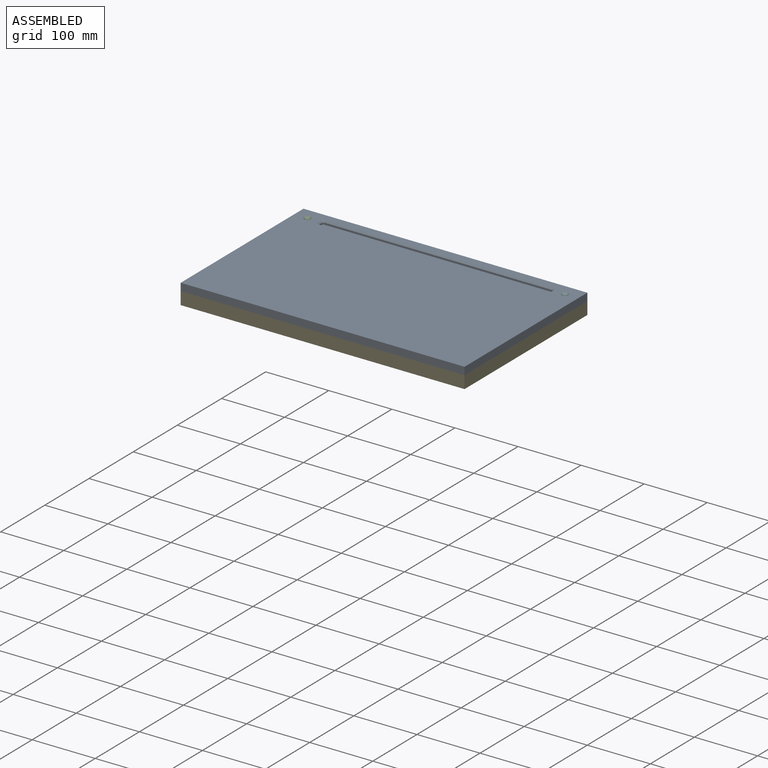
[diagram: assembled view]
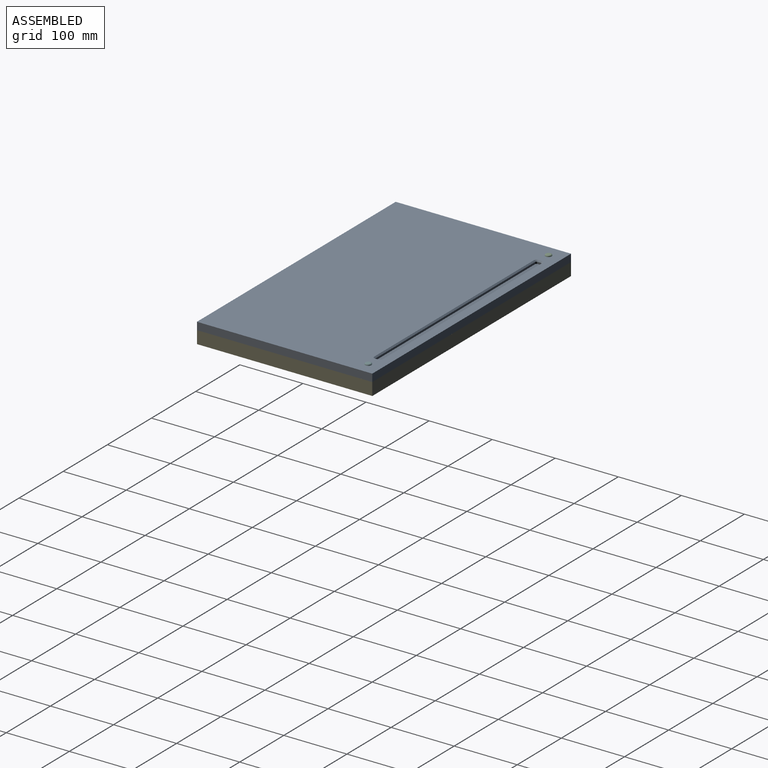
[diagram: assembled view, second angle]
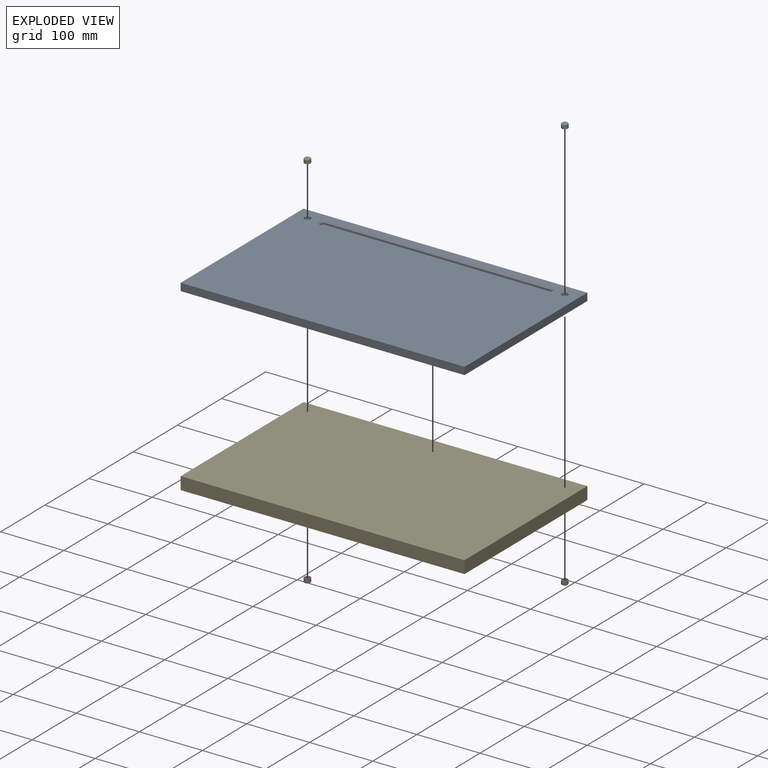
[diagram: exploded view]
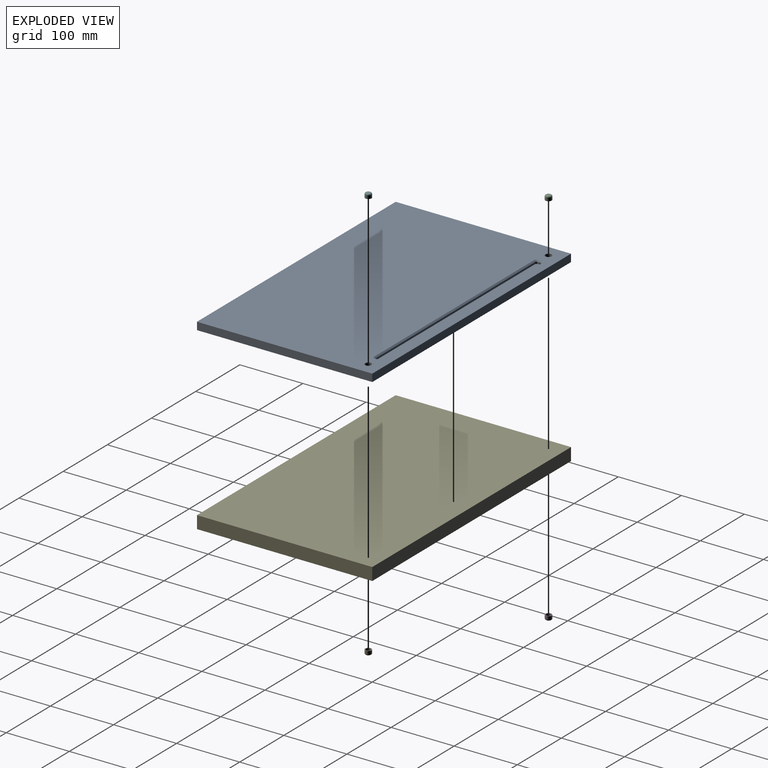
[diagram: exploded view, second angle]
ASSEMBLY  parts=6 mates=5
PART A: 27 faces, bbox 450x278x12 mm
  f0: plane 278x12mm, normal (1,0,0), area 3336mm2, adj f1,f3,f4,f5
  f1: plane 450x12mm, normal (0,1,0), area 5400mm2, adj f0,f2,f4,f5
  f2: plane 278x12mm, normal (-1,0,0), area 3336mm2, adj f1,f3,f4,f5
  f3: plane 450x12mm, normal (0,-1,0), area 5400mm2, adj f0,f2,f4,f5
  f4: plane 450x278mm, normal (0,0,1), area 119780.3mm2, adj f0,f1,f2,f3,f6,f8,f19,f20
  f5: plane 450x278mm, normal (0,0,-1), area 125100mm2, adj f0,f1,f2,f3
  f6: cylinder r=5mm len=10mm, axis (0,0,1), area 157.1mm2, adj f4,f7
  f7: plane 10x10mm, normal (0,0,1), area 78.5mm2, adj f6
  f8: cylinder r=5mm len=10mm, axis (0,0,1), area 157.1mm2, adj f4,f9
  f9: plane 10x10mm, normal (0,0,1), area 78.5mm2, adj f8
  f10: plane 361x3mm, normal (0,-1,0), area 1083mm2, adj f11,f17,f18,f26
  f11: cylinder r=2.5mm len=3mm, axis (0,0,1), area 11.8mm2, adj f10,f12,f18,f25
  f12: plane 5x3mm, normal (1,0,0), area 15mm2, adj f11,f13,f18,f23
  f13: cylinder r=2.5mm len=3mm, axis (0,0,1), area 11.8mm2, adj f12,f14,f18,f21
  f14: plane 361x3mm, normal (0,1,0), area 1083mm2, adj f13,f15,f18,f19
  f15: cylinder r=2.5mm len=3mm, axis (0,0,1), area 11.8mm2, adj f14,f16,f18,f20
  f16: plane 5x3mm, normal (-1,0,0), area 15mm2, adj f15,f17,f18,f22
  f17: cylinder r=2.5mm len=3mm, axis (0,0,1), area 11.8mm2, adj f10,f16,f18,f24
  f18: plane 366x10mm, normal (0,0,1), area 3654.6mm2, adj f10,f11,f12,f13,f14,f15,f16,f17
  f19: plane 361x2mm, normal (0,0.71,0.71), area 1021.1mm2, adj f4,f14,f20,f21
  f20: cone r=2.5mm half-angle=45deg, axis (0,0,1), area 15.6mm2, adj f4,f15,f19,f22
  f21: cone r=2.5mm half-angle=45deg, axis (0,0,1), area 15.6mm2, adj f4,f13,f19,f23
  f22: plane 5x2mm, normal (-0.71,0,0.71), area 14.1mm2, adj f4,f16,f20,f24
  f23: plane 5x2mm, normal (0.71,0,0.71), area 14.1mm2, adj f4,f12,f21,f25
  f24: cone r=2.5mm half-angle=45deg, axis (0,0,1), area 15.6mm2, adj f4,f17,f22,f26
  f25: cone r=2.5mm half-angle=45deg, axis (0,0,1), area 15.6mm2, adj f4,f11,f23,f26
  f26: plane 361x2mm, normal (0,-0.71,0.71), area 1021.1mm2, adj f4,f10,f24,f25
PART B: 7 faces, bbox 10.8x10.8x7 mm
  f0: cylinder r=5mm len=10mm, axis (0,0,-1), area 157.1mm2, adj f2,f3
  f1: plane 6x6mm, normal (0,0,1), area 28.3mm2, adj f3
  f2: plane 10x10mm, normal (0,0,-1), area 28.3mm2, adj f0,f4
  f3: torus R=3mm, axis (0,0,1), area 84.4mm2, adj f0,f1
  f4: cylinder r=4mm len=8mm, axis (0,0,-1), area 125.7mm2, adj f2,f6
  f5: plane 6x6mm, normal (0,0,-1), area 28.3mm2, adj f6
  f6: torus R=3mm, axis (0,0,1), area 35.9mm2, adj f4,f5
PART C: same geometry as B
PART D: same geometry as B
PART E: 10 faces, bbox 450x278x20 mm
  f0: plane 278x20mm, normal (1,0,0), area 5560mm2, adj f1,f3,f4,f5
  f1: plane 450x20mm, normal (0,1,0), area 9000mm2, adj f0,f2,f4,f5
  f2: plane 278x20mm, normal (-1,0,0), area 5560mm2, adj f1,f3,f4,f5
  f3: plane 450x20mm, normal (0,-1,0), area 9000mm2, adj f0,f2,f4,f5
  f4: plane 450x278mm, normal (0,0,-1), area 124942.9mm2, adj f0,f1,f2,f3,f6,f8
  f5: plane 450x278mm, normal (0,0,1), area 125100mm2, adj f0,f1,f2,f3
  f6: cylinder r=5mm len=10mm, axis (0,0,-1), area 157.1mm2, adj f4,f7
  f7: plane 10x10mm, normal (0,0,-1), area 78.5mm2, adj f6
  f8: cylinder r=5mm len=10mm, axis (0,0,-1), area 157.1mm2, adj f4,f9
  f9: plane 10x10mm, normal (0,0,-1), area 78.5mm2, adj f8
PART F: same geometry as B
PLACE A t=(-170.72,-30.72,90.6)mm
PLACE B rot(axis=(1,0,0),180deg) t=(33.28,87.28,75.6)mm
PLACE C t=(-374.72,87.28,97.6)mm
PLACE D rot(axis=(1,0,0),180deg) t=(-374.72,87.28,75.6)mm
PLACE E rot(axis=(0,0,1),180deg) t=(-170.72,-30.72,90.6)mm
PLACE F t=(33.28,87.28,97.6)mm
MATE fastened C.f0 <-> A.f6  axis (0,0,-1) through (-374.72,87.28,97.6)mm
MATE fastened A.f8 <-> F.f0  axis (0,0,1) through (33.28,87.28,97.6)mm
MATE fastened B.f0 <-> E.f8  axis (0,0,1) through (33.28,87.28,75.6)mm
MATE fastened E.f5 <-> A.f5  axis (0,0,1) through (-170.72,-30.72,90.6)mm
MATE fastened D.f0 <-> E.f6  axis (0,0,1) through (-374.72,87.28,75.6)mm
